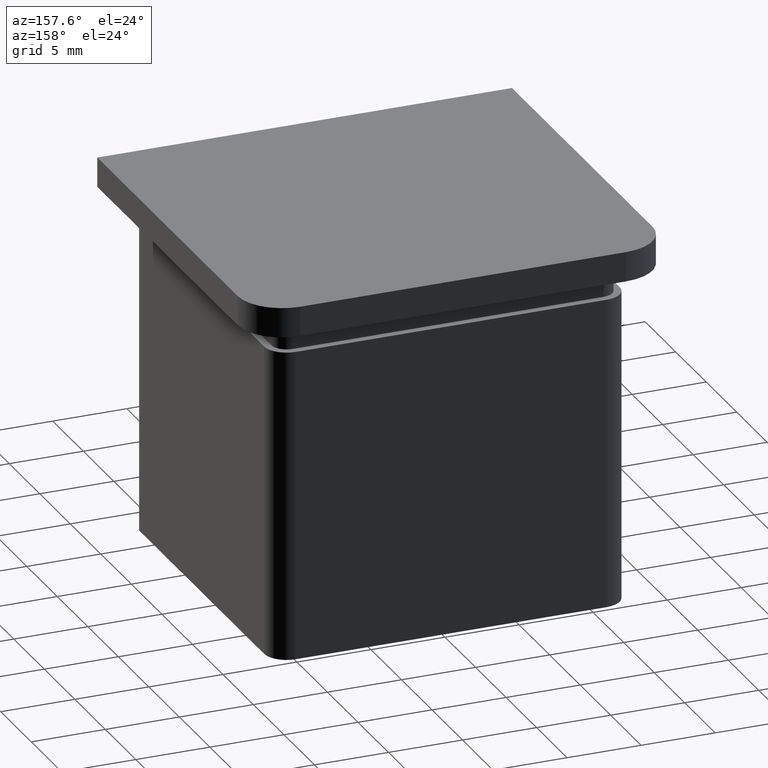
[diagram: clean part render]
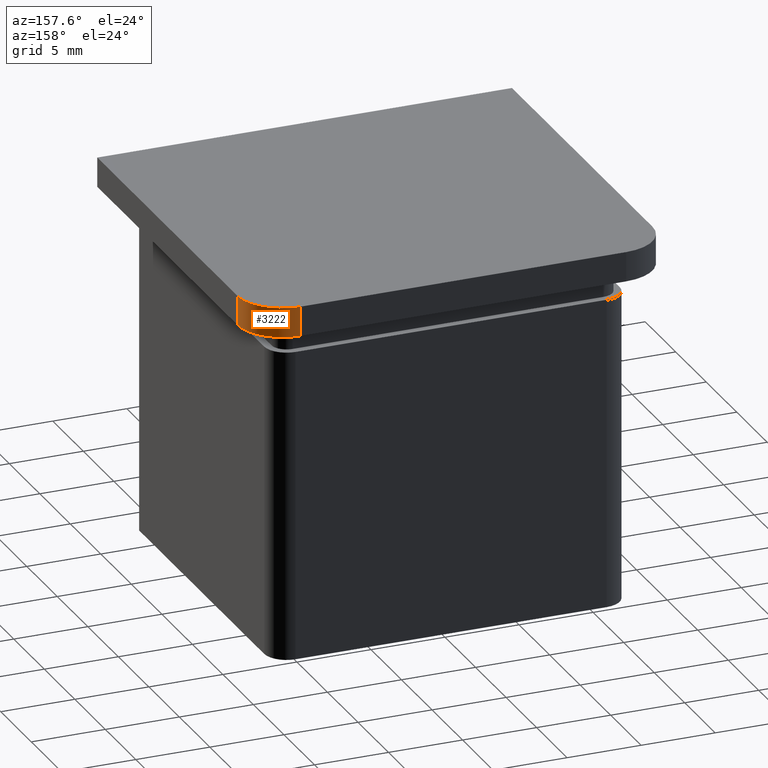
[diagram: same view with one face highlighted and labeled with its STEP entity id]
A machine part, auxiliary view. The second image highlights one B-rep face of the part: STEP entity #3222.
In plain terms, the highlighted cylindrical surface (partial cylindrical patch) has radius 3 mm, axis along (0, 0, -1).
Its self-contained STEP definition (entity closure, byte-faithful):
#141 = CARTESIAN_POINT ( 'NONE',  ( 10.99999999999999645, 9.999999999999998224, 0.000000000000000000 ) ) ;
#258 = EDGE_LOOP ( 'NONE', ( #15459, #11638, #6460, #3809 ) ) ;
#653 = EDGE_CURVE ( 'NONE', #10158, #6998, #15243, .T. ) ;
#692 = CARTESIAN_POINT ( 'NONE',  ( 13.99999999999999467, 9.999999999999998224, 2.000000000000000000 ) ) ;
#1022 = FACE_OUTER_BOUND ( 'NONE', #258, .T. ) ;
#1169 = AXIS2_PLACEMENT_3D ( 'NONE', #3752, #11500, #11277 ) ;
#1357 = CARTESIAN_POINT ( 'NONE',  ( 10.99999999999998934, 13.00000000000000000, 0.000000000000000000 ) ) ;
#2659 = CARTESIAN_POINT ( 'NONE',  ( 10.99999999999998934, 13.00000000000000000, 2.000000000000000000 ) ) ;
#2710 = DIRECTION ( 'NONE',  ( 1.000000000000000000, -1.156482317317871725E-15, 0.000000000000000000 ) ) ;
#3056 = DIRECTION ( 'NONE',  ( 0.000000000000000000, -0.000000000000000000, -1.000000000000000000 ) ) ;
#3136 = DIRECTION ( 'NONE',  ( -0.000000000000000000, -0.000000000000000000, 1.000000000000000000 ) ) ;
#3222 = ADVANCED_FACE ( 'NONE', ( #1022 ), #12002, .T. ) ;
#3752 = CARTESIAN_POINT ( 'NONE',  ( 10.99999999999999645, 9.999999999999998224, 2.000000000000000000 ) ) ;
#3809 = ORIENTED_EDGE ( 'NONE', *, *, #12614, .F. ) ;
#5903 = AXIS2_PLACEMENT_3D ( 'NONE', #141, #3056, #2710 ) ;
#6355 = AXIS2_PLACEMENT_3D ( 'NONE', #15078, #16267, #13674 ) ;
#6460 = ORIENTED_EDGE ( 'NONE', *, *, #13437, .F. ) ;
#6998 = VERTEX_POINT ( 'NONE', #13291 ) ;
#7420 = CARTESIAN_POINT ( 'NONE',  ( 13.99999999999999467, 9.999999999999998224, 0.000000000000000000 ) ) ;
#8835 = VERTEX_POINT ( 'NONE', #1357 ) ;
#10158 = VERTEX_POINT ( 'NONE', #7420 ) ;
#10175 = VECTOR ( 'NONE', #13242, 1000.000000000000000 ) ;
#10419 = VECTOR ( 'NONE', #3136, 1000.000000000000000 ) ;
#11277 = DIRECTION ( 'NONE',  ( -1.000000000000000000, 0.000000000000000000, 0.000000000000000000 ) ) ;
#11500 = DIRECTION ( 'NONE',  ( 0.000000000000000000, 0.000000000000000000, -1.000000000000000000 ) ) ;
#11638 = ORIENTED_EDGE ( 'NONE', *, *, #653, .F. ) ;
#12002 = CYLINDRICAL_SURFACE ( 'NONE', #1169, 2.999999999999999112 ) ;
#12614 = EDGE_CURVE ( 'NONE', #13386, #8835, #13569, .T. ) ;
#13242 = DIRECTION ( 'NONE',  ( 0.000000000000000000, 0.000000000000000000, -1.000000000000000000 ) ) ;
#13291 = CARTESIAN_POINT ( 'NONE',  ( 13.99999999999999467, 9.999999999999998224, 2.000000000000000000 ) ) ;
#13386 = VERTEX_POINT ( 'NONE', #2659 ) ;
#13437 = EDGE_CURVE ( 'NONE', #8835, #10158, #14951, .T. ) ;
#13569 = LINE ( 'NONE', #15585, #10175 ) ;
#13674 = DIRECTION ( 'NONE',  ( 1.000000000000000000, 0.000000000000000000, 0.000000000000000000 ) ) ;
#13740 = CIRCLE ( 'NONE', #6355, 2.999999999999999112 ) ;
#14951 = CIRCLE ( 'NONE', #5903, 2.999999999999999112 ) ;
#15078 = CARTESIAN_POINT ( 'NONE',  ( 10.99999999999999645, 9.999999999999998224, 2.000000000000000000 ) ) ;
#15243 = LINE ( 'NONE', #692, #10419 ) ;
#15459 = ORIENTED_EDGE ( 'NONE', *, *, #15929, .F. ) ;
#15585 = CARTESIAN_POINT ( 'NONE',  ( 10.99999999999999645, 13.00000000000000000, 2.000000000000000000 ) ) ;
#15929 = EDGE_CURVE ( 'NONE', #6998, #13386, #13740, .T. ) ;
#16267 = DIRECTION ( 'NONE',  ( -0.000000000000000000, 0.000000000000000000, 1.000000000000000000 ) ) ;